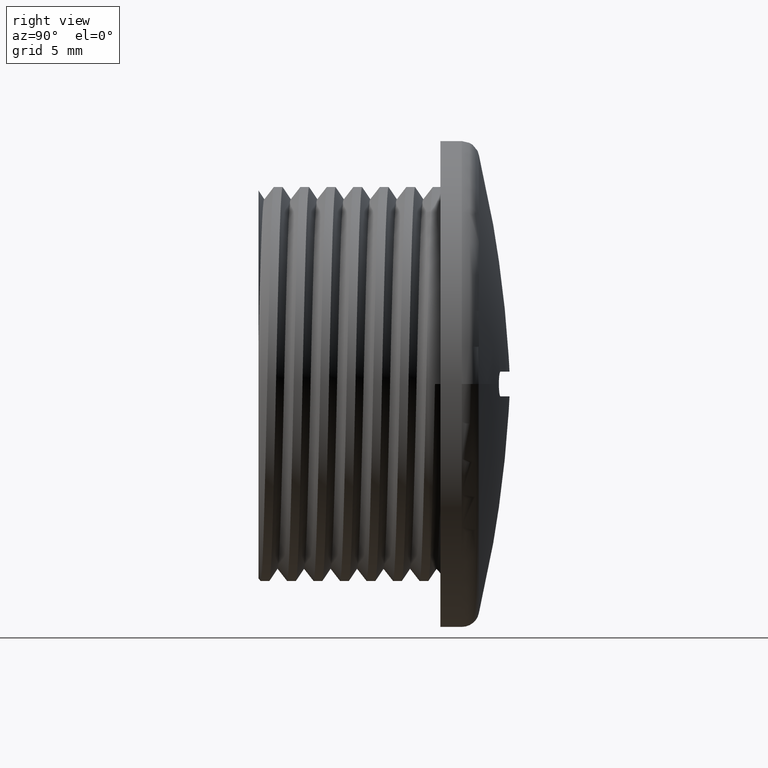
[diagram: clean part render]
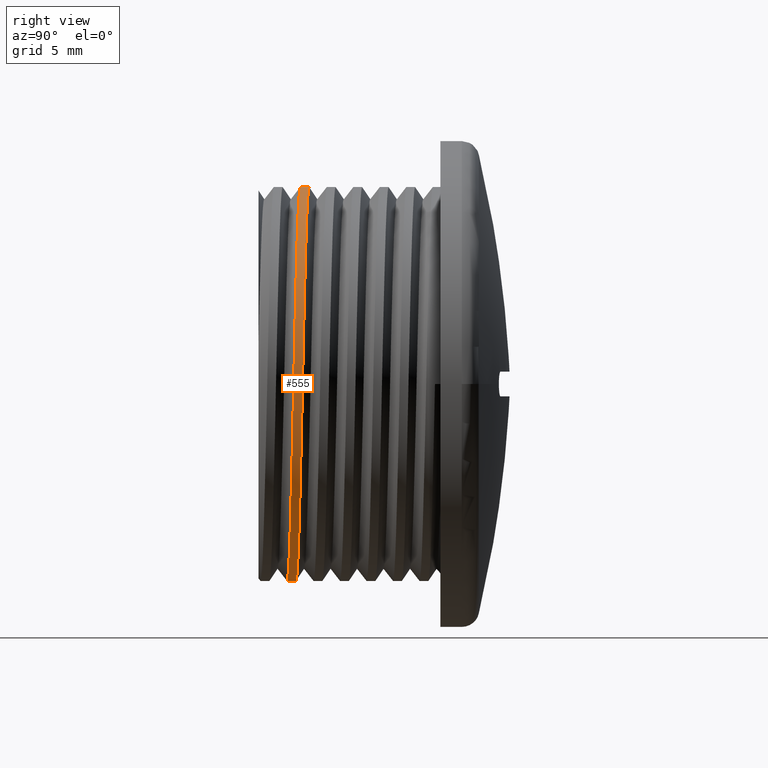
[diagram: same view with one face highlighted and labeled with its STEP entity id]
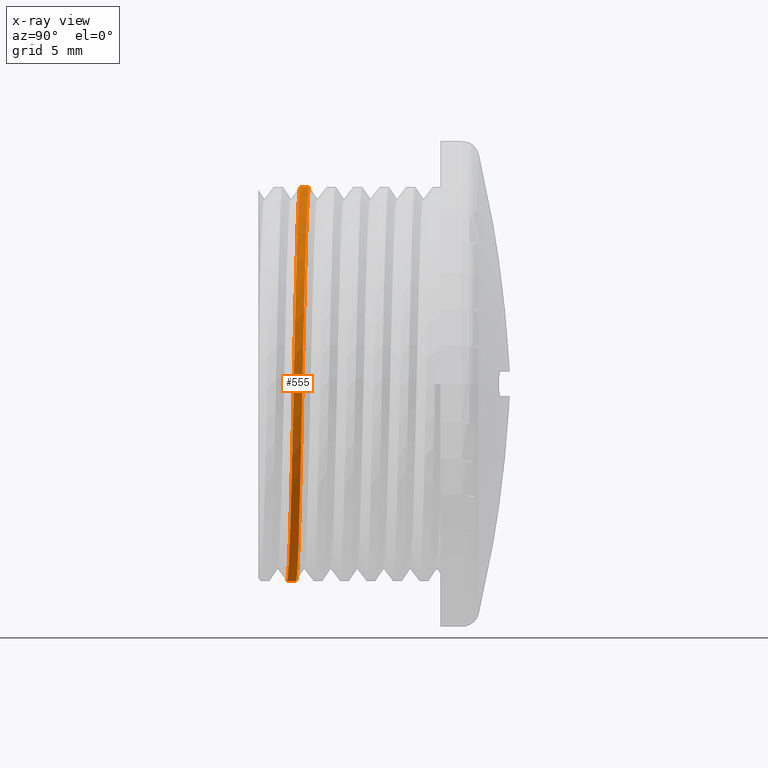
[diagram: x-ray of the same camera — body ghosted, the highlighted face saturated]
A machine part, right view. The second image highlights one B-rep face of the part: STEP entity #555.
The next image is the same camera in x-ray: the body ghosted, the highlighted face saturated — about 0% of this face is hidden behind the body in this view.
In plain terms, the highlighted cylindrical surface (partial cylindrical patch) has radius 11.15 mm, axis along (0, 1, 0).
Its self-contained STEP definition (entity closure, byte-faithful):
#3 =( BOUNDED_CURVE ( )  B_SPLINE_CURVE ( 2, ( #1538, #1521, #1541, #1522, #1546, #1550, #1598, #1601, #1585 ),
 .UNSPECIFIED., .F., .T. ) 
 B_SPLINE_CURVE_WITH_KNOTS ( ( 3, 2, 2, 2, 3 ),
 ( 0.3346969944475110000, 0.3435034193283362800, 0.3523098442091615000, 0.3611162690899867300, 0.3699226939708120100 ),
 .UNSPECIFIED. ) 
 CURVE ( )  GEOMETRIC_REPRESENTATION_ITEM ( )  RATIONAL_B_SPLINE_CURVE ( ( 1.000000000000000000, 0.9238795325112867400, 1.000000000000000000, 0.9238795325112867400, 1.000000000000000000, 0.9238795325112867400, 1.000000000000000000, 0.9238795325114279600, 0.9999999999998587800 ) ) 
 REPRESENTATION_ITEM ( '' )  );
#9 =( BOUNDED_CURVE ( )  B_SPLINE_CURVE ( 2, ( #612, #622, #627, #677, #680, #661, #670, #684, #674 ),
 .UNSPECIFIED., .F., .T. ) 
 B_SPLINE_CURVE_WITH_KNOTS ( ( 3, 2, 2, 2, 3 ),
 ( 0.07601524333835808800, 0.08481990177778568600, 0.09362456021721329800, 0.1024292186566409000, 0.1112338770960685000 ),
 .UNSPECIFIED. ) 
 CURVE ( )  GEOMETRIC_REPRESENTATION_ITEM ( )  RATIONAL_B_SPLINE_CURVE ( ( 1.000000000000000000, 0.9238795325112867400, 1.000000000000000000, 0.9238795325112867400, 1.000000000000000000, 0.9238795325112867400, 1.000000000000000000, 0.9238795325112867400, 1.000000000000000000 ) ) 
 REPRESENTATION_ITEM ( '' )  );
#39 = EDGE_LOOP ( 'NONE', ( #1777, #1778, #1784, #1756 ) ) ;
#429 = VERTEX_POINT ( 'NONE', #1562 ) ;
#433 = VERTEX_POINT ( 'NONE', #1552 ) ;
#440 = VERTEX_POINT ( 'NONE', #1518 ) ;
#451 = VERTEX_POINT ( 'NONE', #1555 ) ;
#465 = EDGE_CURVE ( 'NONE', #429, #451, #3, .T. ) ;
#489 = EDGE_CURVE ( 'NONE', #433, #440, #9, .T. ) ;
#502 = EDGE_CURVE ( 'NONE', #440, #429, #750, .T. ) ;
#505 = EDGE_CURVE ( 'NONE', #433, #451, #764, .T. ) ;
#555 = ADVANCED_FACE ( 'NONE', ( #988 ), #1021, .T. ) ;
#612 = CARTESIAN_POINT ( 'NONE',  ( 6.827405905246497100E-016, 1.619760528949536000, -11.15000000000000400 ) ) ;
#622 = CARTESIAN_POINT ( 'NONE',  ( 4.618481220460013000, 1.713510528949535100, -11.15000000000000000 ) ) ;
#627 = CARTESIAN_POINT ( 'NONE',  ( 7.884240610230006200, 1.807260528949535100, -7.884240610230006200 ) ) ;
#661 = CARTESIAN_POINT ( 'NONE',  ( 11.14999999999999900, 2.088510528949535100, 4.618481220460018300 ) ) ;
#670 = CARTESIAN_POINT ( 'NONE',  ( 7.884240610230002700, 2.182260528949535100, 7.884240610230008000 ) ) ;
#674 = CARTESIAN_POINT ( 'NONE',  ( -2.048221771573947600E-015, 2.369760528949532900, 11.14999999999999500 ) ) ;
#677 = CARTESIAN_POINT ( 'NONE',  ( 11.15000000000000000, 1.901010528949534900, -4.618481220460013000 ) ) ;
#680 = CARTESIAN_POINT ( 'NONE',  ( 11.15000000000000000, 1.994760528949535100, 2.730962362098597700E-015 ) ) ;
#684 = CARTESIAN_POINT ( 'NONE',  ( 4.618481220460013900, 2.276010528949535600, 11.14999999999999900 ) ) ;
#750 = LINE ( 'NONE', #767, #1672 ) ;
#764 = LINE ( 'NONE', #765, #1689 ) ;
#765 = CARTESIAN_POINT ( 'NONE',  ( 1.365481181049298800E-015, -36.57566321623292500, -11.15000000000000000 ) ) ;
#767 = CARTESIAN_POINT ( 'NONE',  ( 0.0000000000000000000, -36.57566321623292500, 11.15000000000000000 ) ) ;
#770 = DIRECTION ( 'NONE',  ( 0.0000000000000000000, 1.000000000000000000, 0.0000000000000000000 ) ) ;
#781 = DIRECTION ( 'NONE',  ( 0.0000000000000000000, 1.000000000000000000, 0.0000000000000000000 ) ) ;
#974 = DIRECTION ( 'NONE',  ( 0.0000000000000000000, 0.0000000000000000000, 1.000000000000000000 ) ) ;
#988 = FACE_OUTER_BOUND ( 'NONE', #39, .T. ) ;
#1002 = DIRECTION ( 'NONE',  ( 0.0000000000000000000, 1.000000000000000000, 0.0000000000000000000 ) ) ;
#1021 = CYLINDRICAL_SURFACE ( 'NONE', #1735, 11.15000000000000000 ) ;
#1022 = CARTESIAN_POINT ( 'NONE',  ( 0.0000000000000000000, -36.57566321623292500, 0.0000000000000000000 ) ) ;
#1518 = CARTESIAN_POINT ( 'NONE',  ( -2.048221771573947600E-015, 2.369760528949532900, 11.14999999999999500 ) ) ;
#1521 = CARTESIAN_POINT ( 'NONE',  ( 4.618481220460013900, 2.773587584210166900, 11.14999999999999900 ) ) ;
#1522 = CARTESIAN_POINT ( 'NONE',  ( 11.14999999999999900, 2.586087584210167800, 4.618481220460017400 ) ) ;
#1538 = CARTESIAN_POINT ( 'NONE',  ( -2.048221771573948700E-015, 2.867337584210167800, 11.15000000000000000 ) ) ;
#1541 = CARTESIAN_POINT ( 'NONE',  ( 7.884240610230002700, 2.679837584210167400, 7.884240610230006200 ) ) ;
#1546 = CARTESIAN_POINT ( 'NONE',  ( 11.15000000000000000, 2.492337584210166900, 2.730962362098597700E-015 ) ) ;
#1550 = CARTESIAN_POINT ( 'NONE',  ( 11.15000000000000000, 2.398587584210166900, -4.618481220460011200 ) ) ;
#1552 = CARTESIAN_POINT ( 'NONE',  ( 6.827405905246497100E-016, 1.619760528949536000, -11.15000000000000400 ) ) ;
#1555 = CARTESIAN_POINT ( 'NONE',  ( 1.582683117782405200E-011, 2.117337584210491100, -11.14999999999999500 ) ) ;
#1562 = CARTESIAN_POINT ( 'NONE',  ( -2.048221771573948700E-015, 2.867337584210167800, 11.15000000000000000 ) ) ;
#1585 = CARTESIAN_POINT ( 'NONE',  ( 1.582683117782405200E-011, 2.117337584210491100, -11.14999999999999500 ) ) ;
#1598 = CARTESIAN_POINT ( 'NONE',  ( 7.884240610230004400, 2.304837584210167400, -7.884240610230004400 ) ) ;
#1601 = CARTESIAN_POINT ( 'NONE',  ( 4.618481220466566800, 2.211087584210356600, -11.14999999999344400 ) ) ;
#1672 = VECTOR ( 'NONE', #770, 1000.000000000000000 ) ;
#1689 = VECTOR ( 'NONE', #781, 1000.000000000000000 ) ;
#1735 = AXIS2_PLACEMENT_3D ( 'NONE', #1022, #1002, #974 ) ;
#1756 = ORIENTED_EDGE ( 'NONE', *, *, #502, .F. ) ;
#1777 = ORIENTED_EDGE ( 'NONE', *, *, #489, .F. ) ;
#1778 = ORIENTED_EDGE ( 'NONE', *, *, #505, .T. ) ;
#1784 = ORIENTED_EDGE ( 'NONE', *, *, #465, .F. ) ;